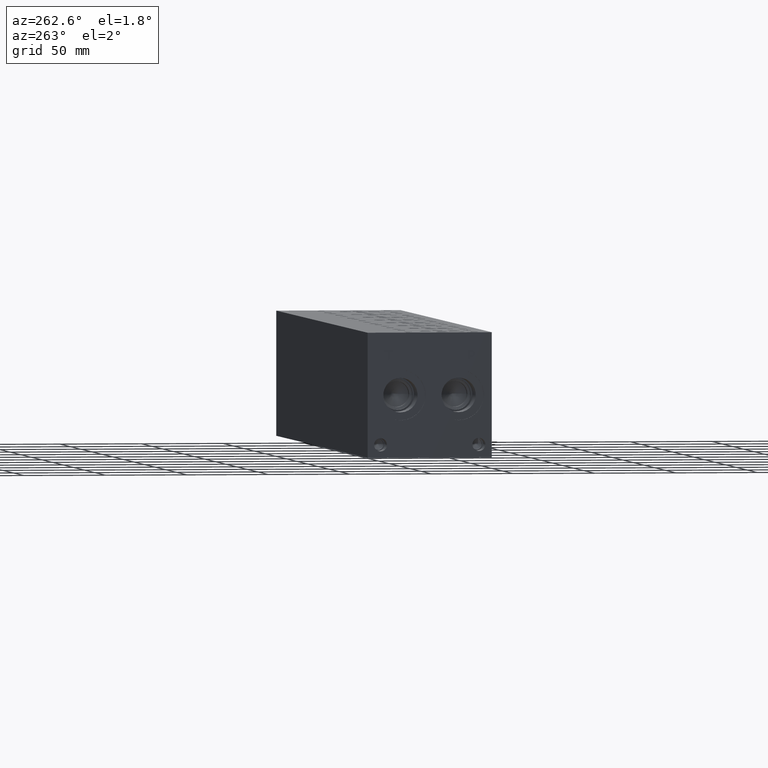
[diagram: clean part render]
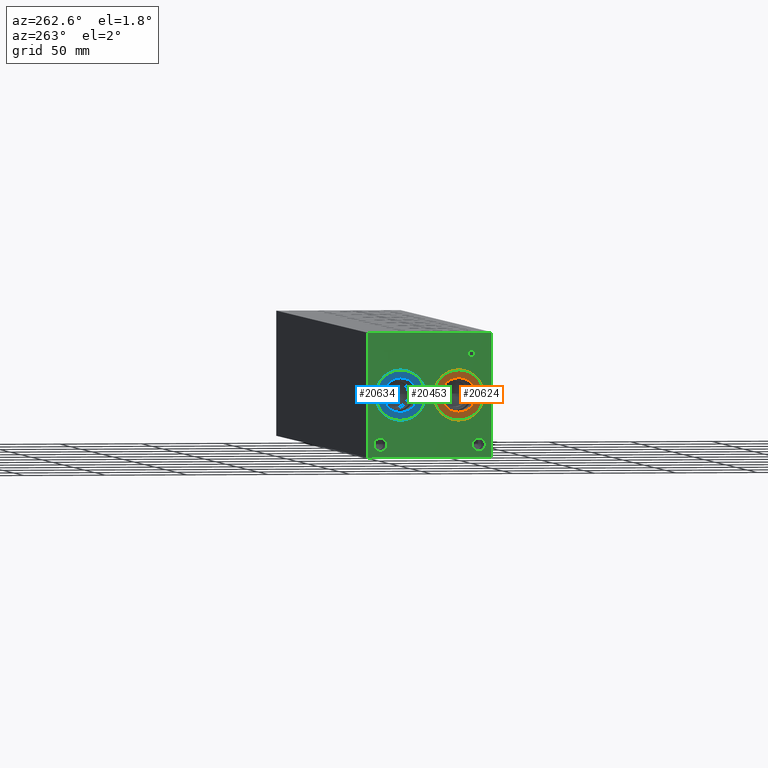
[diagram: same view with three faces highlighted in distinct colors, each labeled with its STEP entity id]
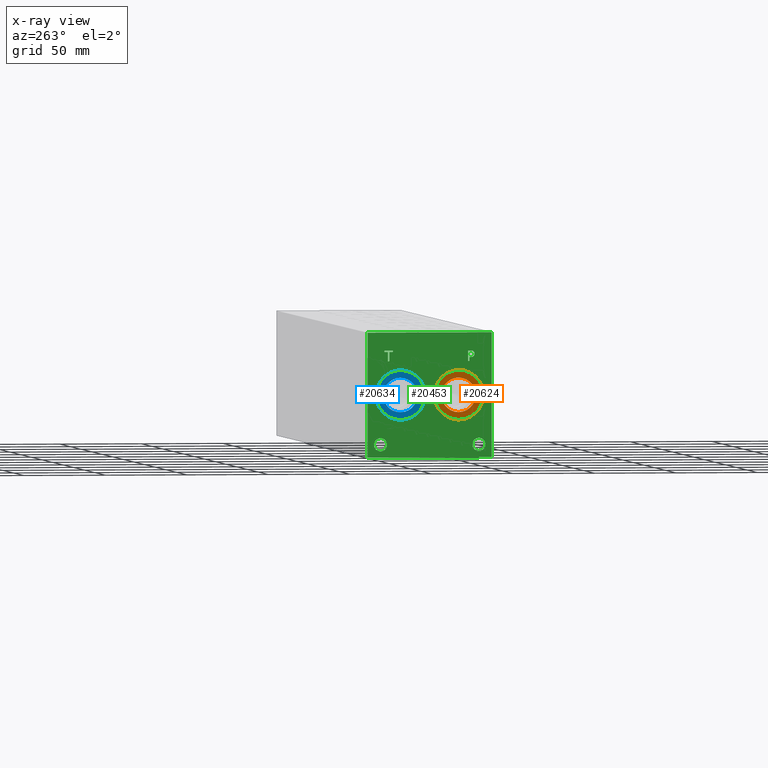
[diagram: x-ray of the same camera — body ghosted, the three highlighted faces saturated]
A machine part, auxiliary view with three faces highlighted in distinct colors.
The next image is the same camera in x-ray (body ghosted, the three faces saturated) — at least one of them is partly hidden behind the body in this view.
Their STEP definitions:

[orange] entity #20624 — the highlighted planar face has unit normal (1, 0, 0).
#865=CIRCLE('',#21788,15.3416);
#866=CIRCLE('',#21789,15.3416);
#867=CIRCLE('',#21791,10.5283);
#868=CIRCLE('',#21792,10.5283);
#1894=FACE_BOUND('',#4083,.T.);
#2858=FACE_OUTER_BOUND('',#4082,.T.);
#4082=EDGE_LOOP('',(#17344,#17345));
#4083=EDGE_LOOP('',(#17346,#17347));
#9397=VERTEX_POINT('',#35089);
#9398=VERTEX_POINT('',#35091);
#9399=VERTEX_POINT('',#35095);
#9400=VERTEX_POINT('',#35096);
#12178=EDGE_CURVE('',#9397,#9398,#865,.T.);
#12179=EDGE_CURVE('',#9398,#9397,#866,.T.);
#12180=EDGE_CURVE('',#9399,#9400,#867,.T.);
#12181=EDGE_CURVE('',#9400,#9399,#868,.T.);
#17344=ORIENTED_EDGE('',*,*,#12179,.F.);
#17345=ORIENTED_EDGE('',*,*,#12178,.F.);
#17346=ORIENTED_EDGE('',*,*,#12180,.T.);
#17347=ORIENTED_EDGE('',*,*,#12181,.T.);
#19067=PLANE('',#21790);
#20624=ADVANCED_FACE('',(#2858,#1894),#19067,.F.);
#21788=AXIS2_PLACEMENT_3D('',#35092,#25786,#25787);
#21789=AXIS2_PLACEMENT_3D('',#35093,#25788,#25789);
#21790=AXIS2_PLACEMENT_3D('',#35094,#25790,#25791);
#21791=AXIS2_PLACEMENT_3D('',#35097,#25792,#25793);
#21792=AXIS2_PLACEMENT_3D('',#35098,#25794,#25795);
#25786=DIRECTION('center_axis',(1.,0.,0.));
#25787=DIRECTION('ref_axis',(0.,0.,-1.));
#25788=DIRECTION('center_axis',(1.,0.,0.));
#25789=DIRECTION('ref_axis',(0.,0.,-1.));
#25790=DIRECTION('center_axis',(1.,0.,0.));
#25791=DIRECTION('ref_axis',(0.,0.,-1.));
#25792=DIRECTION('center_axis',(1.,0.,0.));
#25793=DIRECTION('ref_axis',(0.,0.,-1.));
#25794=DIRECTION('center_axis',(1.,0.,0.));
#25795=DIRECTION('ref_axis',(0.,0.,-1.));
#35089=CARTESIAN_POINT('',(0.7874,20.2438,22.7584));
#35091=CARTESIAN_POINT('',(0.7874,20.2438,53.4416));
#35092=CARTESIAN_POINT('Origin',(0.7874,20.2438,38.1));
#35093=CARTESIAN_POINT('Origin',(0.7874,20.2438,38.1));
#35094=CARTESIAN_POINT('Origin',(0.7874,20.2438,48.6283));
#35095=CARTESIAN_POINT('',(0.7874,20.2438,48.6283));
#35096=CARTESIAN_POINT('',(0.7874,20.2438,27.5717));
#35097=CARTESIAN_POINT('Origin',(0.7874,20.2438,38.1));
#35098=CARTESIAN_POINT('Origin',(0.7874,20.2438,38.1));

[blue] entity #20634 — the highlighted planar face has unit normal (1, 0, 0).
#883=CIRCLE('',#21816,15.3416);
#884=CIRCLE('',#21817,15.3416);
#885=CIRCLE('',#21819,10.5283);
#886=CIRCLE('',#21820,10.5283);
#1896=FACE_BOUND('',#4095,.T.);
#2868=FACE_OUTER_BOUND('',#4094,.T.);
#4094=EDGE_LOOP('',(#17396,#17397));
#4095=EDGE_LOOP('',(#17398,#17399));
#9417=VERTEX_POINT('',#35145);
#9418=VERTEX_POINT('',#35147);
#9419=VERTEX_POINT('',#35151);
#9420=VERTEX_POINT('',#35152);
#12204=EDGE_CURVE('',#9417,#9418,#883,.T.);
#12205=EDGE_CURVE('',#9418,#9417,#884,.T.);
#12206=EDGE_CURVE('',#9419,#9420,#885,.T.);
#12207=EDGE_CURVE('',#9420,#9419,#886,.T.);
#17396=ORIENTED_EDGE('',*,*,#12205,.F.);
#17397=ORIENTED_EDGE('',*,*,#12204,.F.);
#17398=ORIENTED_EDGE('',*,*,#12206,.T.);
#17399=ORIENTED_EDGE('',*,*,#12207,.T.);
#19069=PLANE('',#21818);
#20634=ADVANCED_FACE('',(#2868,#1896),#19069,.F.);
#21816=AXIS2_PLACEMENT_3D('',#35148,#25850,#25851);
#21817=AXIS2_PLACEMENT_3D('',#35149,#25852,#25853);
#21818=AXIS2_PLACEMENT_3D('',#35150,#25854,#25855);
#21819=AXIS2_PLACEMENT_3D('',#35153,#25856,#25857);
#21820=AXIS2_PLACEMENT_3D('',#35154,#25858,#25859);
#25850=DIRECTION('center_axis',(1.,0.,0.));
#25851=DIRECTION('ref_axis',(0.,0.,-1.));
#25852=DIRECTION('center_axis',(1.,0.,0.));
#25853=DIRECTION('ref_axis',(0.,0.,-1.));
#25854=DIRECTION('center_axis',(1.,0.,0.));
#25855=DIRECTION('ref_axis',(0.,0.,-1.));
#25856=DIRECTION('center_axis',(1.,0.,0.));
#25857=DIRECTION('ref_axis',(0.,0.,-1.));
#25858=DIRECTION('center_axis',(1.,0.,0.));
#25859=DIRECTION('ref_axis',(0.,0.,-1.));
#35145=CARTESIAN_POINT('',(0.7874,55.9562,22.7584));
#35147=CARTESIAN_POINT('',(0.7874,55.9562,53.4416));
#35148=CARTESIAN_POINT('Origin',(0.7874,55.9562,38.1));
#35149=CARTESIAN_POINT('Origin',(0.7874,55.9562,38.1));
#35150=CARTESIAN_POINT('Origin',(0.7874,55.9562,48.6283));
#35151=CARTESIAN_POINT('',(0.7874,55.9562,48.6283));
#35152=CARTESIAN_POINT('',(0.7874,55.9562,27.5717));
#35153=CARTESIAN_POINT('Origin',(0.7874,55.9562,38.1));
#35154=CARTESIAN_POINT('Origin',(0.7874,55.9562,38.1));

[green] entity #20453 — the highlighted planar face has unit normal (-1, 0, 0).
#601=CIRCLE('',#21354,15.3416);
#602=CIRCLE('',#21355,15.3416);
#603=CIRCLE('',#21356,15.3416);
#604=CIRCLE('',#21357,15.3416);
#605=CIRCLE('',#21358,4.0005);
#606=CIRCLE('',#21359,4.0005);
#607=CIRCLE('',#21360,4.0005);
#608=CIRCLE('',#21361,4.0005);
#1747=B_SPLINE_CURVE_WITH_KNOTS('',2,(#34106,#34107,#34108,#34109),
 .UNSPECIFIED.,.F.,.F.,(3,1,3),(0.,1.,2.),.UNSPECIFIED.);
#1749=B_SPLINE_CURVE_WITH_KNOTS('',2,(#34127,#34128,#34129,#34130),
 .UNSPECIFIED.,.F.,.F.,(3,1,3),(0.,1.,2.),.UNSPECIFIED.);
#1751=B_SPLINE_CURVE_WITH_KNOTS('',2,(#34176,#34177,#34178,#34179),
 .UNSPECIFIED.,.F.,.F.,(3,1,3),(0.,1.,2.),.UNSPECIFIED.);
#1753=B_SPLINE_CURVE_WITH_KNOTS('',2,(#34194,#34195,#34196,#34197),
 .UNSPECIFIED.,.F.,.F.,(3,1,3),(0.,1.,2.),.UNSPECIFIED.);
#1848=FACE_BOUND('',#3866,.T.);
#1849=FACE_BOUND('',#3867,.T.);
#1850=FACE_BOUND('',#3868,.T.);
#1851=FACE_BOUND('',#3869,.T.);
#1852=FACE_BOUND('',#3870,.T.);
#1853=FACE_BOUND('',#3871,.T.);
#2687=FACE_OUTER_BOUND('',#3865,.T.);
#3865=EDGE_LOOP('',(#16473,#16474,#16475,#16476));
#3866=EDGE_LOOP('',(#16477,#16478));
#3867=EDGE_LOOP('',(#16479,#16480));
#3868=EDGE_LOOP('',(#16481,#16482));
#3869=EDGE_LOOP('',(#16483,#16484));
#3870=EDGE_LOOP('',(#16485,#16486,#16487,#16488,#16489,#16490,#16491,#16492));
#3871=EDGE_LOOP('',(#16493,#16494,#16495,#16496,#16497,#16498,#16499,#16500,
#16501));
#4455=LINE('',#27333,#6157);
#5768=LINE('',#34139,#7470);
#5771=LINE('',#34145,#7473);
#5774=LINE('',#34151,#7476);
#5777=LINE('',#34157,#7479);
#5780=LINE('',#34163,#7482);
#5784=LINE('',#34205,#7486);
#5785=LINE('',#34207,#7487);
#5786=LINE('',#34208,#7488);
#5787=LINE('',#34227,#7489);
#5788=LINE('',#34229,#7490);
#5789=LINE('',#34231,#7491);
#5790=LINE('',#34233,#7492);
#5791=LINE('',#34235,#7493);
#5792=LINE('',#34237,#7494);
#5793=LINE('',#34239,#7495);
#5794=LINE('',#34240,#7496);
#6157=VECTOR('',#22493,10.);
#7470=VECTOR('',#24742,10.);
#7473=VECTOR('',#24747,10.);
#7476=VECTOR('',#24752,10.);
#7479=VECTOR('',#24757,10.);
#7482=VECTOR('',#24762,10.);
#7486=VECTOR('',#24770,10.);
#7487=VECTOR('',#24771,10.);
#7488=VECTOR('',#24772,10.);
#7489=VECTOR('',#24789,10.);
#7490=VECTOR('',#24790,10.);
#7491=VECTOR('',#24791,10.);
#7492=VECTOR('',#24792,10.);
#7493=VECTOR('',#24793,10.);
#7494=VECTOR('',#24794,10.);
#7495=VECTOR('',#24795,10.);
#7496=VECTOR('',#24796,10.);
#7845=VERTEX_POINT('',#27326);
#7848=VERTEX_POINT('',#27331);
#9075=VERTEX_POINT('',#34104);
#9076=VERTEX_POINT('',#34105);
#9079=VERTEX_POINT('',#34126);
#9081=VERTEX_POINT('',#34138);
#9083=VERTEX_POINT('',#34144);
#9085=VERTEX_POINT('',#34150);
#9087=VERTEX_POINT('',#34156);
#9089=VERTEX_POINT('',#34162);
#9091=VERTEX_POINT('',#34175);
#9093=VERTEX_POINT('',#34204);
#9094=VERTEX_POINT('',#34206);
#9095=VERTEX_POINT('',#34209);
#9096=VERTEX_POINT('',#34210);
#9097=VERTEX_POINT('',#34213);
#9098=VERTEX_POINT('',#34214);
#9099=VERTEX_POINT('',#34217);
#9100=VERTEX_POINT('',#34218);
#9101=VERTEX_POINT('',#34221);
#9102=VERTEX_POINT('',#34222);
#9103=VERTEX_POINT('',#34225);
#9104=VERTEX_POINT('',#34226);
#9105=VERTEX_POINT('',#34228);
#9106=VERTEX_POINT('',#34230);
#9107=VERTEX_POINT('',#34232);
#9108=VERTEX_POINT('',#34234);
#9109=VERTEX_POINT('',#34236);
#9110=VERTEX_POINT('',#34238);
#9919=EDGE_CURVE('',#7845,#7848,#4455,.T.);
#11739=EDGE_CURVE('',#9075,#9076,#1747,.T.);
#11743=EDGE_CURVE('',#9079,#9075,#1749,.T.);
#11746=EDGE_CURVE('',#9081,#9079,#5768,.T.);
#11749=EDGE_CURVE('',#9083,#9081,#5771,.T.);
#11752=EDGE_CURVE('',#9085,#9083,#5774,.T.);
#11755=EDGE_CURVE('',#9087,#9085,#5777,.T.);
#11758=EDGE_CURVE('',#9089,#9087,#5780,.T.);
#11761=EDGE_CURVE('',#9091,#9089,#1751,.T.);
#11764=EDGE_CURVE('',#9076,#9091,#1753,.T.);
#11766=EDGE_CURVE('',#9093,#7845,#5784,.T.);
#11767=EDGE_CURVE('',#9094,#7848,#5785,.T.);
#11768=EDGE_CURVE('',#9093,#9094,#5786,.T.);
#11769=EDGE_CURVE('',#9095,#9096,#601,.T.);
#11770=EDGE_CURVE('',#9096,#9095,#602,.T.);
#11771=EDGE_CURVE('',#9097,#9098,#603,.T.);
#11772=EDGE_CURVE('',#9098,#9097,#604,.T.);
#11773=EDGE_CURVE('',#9099,#9100,#605,.T.);
#11774=EDGE_CURVE('',#9100,#9099,#606,.T.);
#11775=EDGE_CURVE('',#9101,#9102,#607,.T.);
#11776=EDGE_CURVE('',#9102,#9101,#608,.T.);
#11777=EDGE_CURVE('',#9103,#9104,#5787,.T.);
#11778=EDGE_CURVE('',#9104,#9105,#5788,.T.);
#11779=EDGE_CURVE('',#9105,#9106,#5789,.T.);
#11780=EDGE_CURVE('',#9106,#9107,#5790,.T.);
#11781=EDGE_CURVE('',#9107,#9108,#5791,.T.);
#11782=EDGE_CURVE('',#9108,#9109,#5792,.T.);
#11783=EDGE_CURVE('',#9109,#9110,#5793,.T.);
#11784=EDGE_CURVE('',#9110,#9103,#5794,.T.);
#16473=ORIENTED_EDGE('',*,*,#11766,.T.);
#16474=ORIENTED_EDGE('',*,*,#9919,.T.);
#16475=ORIENTED_EDGE('',*,*,#11767,.F.);
#16476=ORIENTED_EDGE('',*,*,#11768,.F.);
#16477=ORIENTED_EDGE('',*,*,#11769,.T.);
#16478=ORIENTED_EDGE('',*,*,#11770,.T.);
#16479=ORIENTED_EDGE('',*,*,#11771,.T.);
#16480=ORIENTED_EDGE('',*,*,#11772,.T.);
#16481=ORIENTED_EDGE('',*,*,#11773,.T.);
#16482=ORIENTED_EDGE('',*,*,#11774,.T.);
#16483=ORIENTED_EDGE('',*,*,#11775,.T.);
#16484=ORIENTED_EDGE('',*,*,#11776,.T.);
#16485=ORIENTED_EDGE('',*,*,#11777,.T.);
#16486=ORIENTED_EDGE('',*,*,#11778,.T.);
#16487=ORIENTED_EDGE('',*,*,#11779,.T.);
#16488=ORIENTED_EDGE('',*,*,#11780,.T.);
#16489=ORIENTED_EDGE('',*,*,#11781,.T.);
#16490=ORIENTED_EDGE('',*,*,#11782,.T.);
#16491=ORIENTED_EDGE('',*,*,#11783,.T.);
#16492=ORIENTED_EDGE('',*,*,#11784,.T.);
#16493=ORIENTED_EDGE('',*,*,#11739,.T.);
#16494=ORIENTED_EDGE('',*,*,#11764,.T.);
#16495=ORIENTED_EDGE('',*,*,#11761,.T.);
#16496=ORIENTED_EDGE('',*,*,#11758,.T.);
#16497=ORIENTED_EDGE('',*,*,#11755,.T.);
#16498=ORIENTED_EDGE('',*,*,#11752,.T.);
#16499=ORIENTED_EDGE('',*,*,#11749,.T.);
#16500=ORIENTED_EDGE('',*,*,#11746,.T.);
#16501=ORIENTED_EDGE('',*,*,#11743,.T.);
#19017=PLANE('',#21353);
#20453=ADVANCED_FACE('',(#2687,#1848,#1849,#1850,#1851,#1852,#1853),#19017,
 .T.);
#21353=AXIS2_PLACEMENT_3D('',#34203,#24768,#24769);
#21354=AXIS2_PLACEMENT_3D('',#34211,#24773,#24774);
#21355=AXIS2_PLACEMENT_3D('',#34212,#24775,#24776);
#21356=AXIS2_PLACEMENT_3D('',#34215,#24777,#24778);
#21357=AXIS2_PLACEMENT_3D('',#34216,#24779,#24780);
#21358=AXIS2_PLACEMENT_3D('',#34219,#24781,#24782);
#21359=AXIS2_PLACEMENT_3D('',#34220,#24783,#24784);
#21360=AXIS2_PLACEMENT_3D('',#34223,#24785,#24786);
#21361=AXIS2_PLACEMENT_3D('',#34224,#24787,#24788);
#22493=DIRECTION('',(0.,0.,1.));
#24742=DIRECTION('',(0.,-1.,-5.56775304226775E-15));
#24747=DIRECTION('',(0.,-3.49676548440641E-15,1.));
#24752=DIRECTION('',(0.,1.,0.));
#24757=DIRECTION('',(0.,3.75218139804999E-15,-1.));
#24762=DIRECTION('',(0.,1.,1.24172909575755E-14));
#24768=DIRECTION('center_axis',(-1.,0.,0.));
#24769=DIRECTION('ref_axis',(0.,-1.,0.));
#24770=DIRECTION('',(0.,-1.,0.));
#24771=DIRECTION('',(0.,-1.,0.));
#24772=DIRECTION('',(0.,0.,1.));
#24773=DIRECTION('center_axis',(1.,0.,0.));
#24774=DIRECTION('ref_axis',(0.,0.,1.));
#24775=DIRECTION('center_axis',(1.,0.,0.));
#24776=DIRECTION('ref_axis',(0.,0.,1.));
#24777=DIRECTION('center_axis',(1.,0.,0.));
#24778=DIRECTION('ref_axis',(0.,0.,1.));
#24779=DIRECTION('center_axis',(1.,0.,0.));
#24780=DIRECTION('ref_axis',(0.,0.,1.));
#24781=DIRECTION('center_axis',(1.,0.,0.));
#24782=DIRECTION('ref_axis',(0.,1.,0.));
#24783=DIRECTION('center_axis',(1.,0.,0.));
#24784=DIRECTION('ref_axis',(0.,1.,0.));
#24785=DIRECTION('center_axis',(1.,0.,0.));
#24786=DIRECTION('ref_axis',(0.,1.,0.));
#24787=DIRECTION('center_axis',(1.,0.,0.));
#24788=DIRECTION('ref_axis',(0.,1.,0.));
#24789=DIRECTION('',(0.,1.,0.));
#24790=DIRECTION('',(0.,-3.17280044688051E-15,1.));
#24791=DIRECTION('',(0.,1.,0.));
#24792=DIRECTION('',(0.,-1.18219413911165E-14,1.));
#24793=DIRECTION('',(0.,-1.,-3.47984565141734E-15));
#24794=DIRECTION('',(0.,1.18219413911165E-14,-1.));
#24795=DIRECTION('',(0.,1.,4.16909044227778E-15));
#24796=DIRECTION('',(0.,3.17280044688052E-15,-1.));
#27326=CARTESIAN_POINT('',(0.,0.,0.));
#27331=CARTESIAN_POINT('',(0.,0.,76.2));
#27333=CARTESIAN_POINT('',(0.,0.,0.));
#34104=CARTESIAN_POINT('',(0.,11.3394327976406,64.6912681439707));
#34105=CARTESIAN_POINT('',(0.,10.582990345468,63.1732373726039));
#34106=CARTESIAN_POINT('Ctrl Pts',(0.,11.3394327976406,64.6912681439707));
#34107=CARTESIAN_POINT('Ctrl Pts',(0.,10.9843679731514,64.4494123939564));
#34108=CARTESIAN_POINT('Ctrl Pts',(0.,10.582990345468,63.7032616758269));
#34109=CARTESIAN_POINT('Ctrl Pts',(0.,10.582990345468,63.1732373726039));
#34126=CARTESIAN_POINT('',(0.,13.0015478456117,65.0874999046326));
#34127=CARTESIAN_POINT('Ctrl Pts',(0.,13.0015478456117,65.0874999046326));
#34128=CARTESIAN_POINT('Ctrl Pts',(0.,12.4355024732376,65.0874999046326));
#34129=CARTESIAN_POINT('Ctrl Pts',(0.,11.6430389519139,64.9022486918556));
#34130=CARTESIAN_POINT('Ctrl Pts',(0.,11.3394327976406,64.6912681439707));
#34138=CARTESIAN_POINT('',(0.,14.5967666223022,65.0874999046326));
#34139=CARTESIAN_POINT('',(0.,45.3983833111509,65.0874999046327));
#34144=CARTESIAN_POINT('',(0.,14.5967666223022,58.7375));
#34145=CARTESIAN_POINT('',(0.,14.5967666223023,29.3687499999999));
#34150=CARTESIAN_POINT('',(0.,13.7528444307627,58.7375));
#34151=CARTESIAN_POINT('',(0.,44.9764222153814,58.7375));
#34156=CARTESIAN_POINT('',(0.,13.7528444307627,61.1045988299279));
#34157=CARTESIAN_POINT('',(0.,13.7528444307628,30.5522994149638));
#34162=CARTESIAN_POINT('',(0.,13.0375689147628,61.1045988299279));
#34163=CARTESIAN_POINT('',(0.,44.618784457381,61.1045988299282));
#34175=CARTESIAN_POINT('',(0.,11.1387439837989,61.7632698086904));
#34176=CARTESIAN_POINT('Ctrl Pts',(0.,11.1387439837989,61.7632698086904));
#34177=CARTESIAN_POINT('Ctrl Pts',(0.,11.4680794731802,61.4390801863307));
#34178=CARTESIAN_POINT('Ctrl Pts',(0.,12.3583144679139,61.1045988299279));
#34179=CARTESIAN_POINT('Ctrl Pts',(0.,13.0375689147628,61.1045988299279));
#34194=CARTESIAN_POINT('Ctrl Pts',(0.,10.582990345468,63.1732373726039));
#34195=CARTESIAN_POINT('Ctrl Pts',(0.,10.582990345468,62.7615680108774));
#34196=CARTESIAN_POINT('Ctrl Pts',(0.,10.8763047656982,62.0205631597695));
#34197=CARTESIAN_POINT('Ctrl Pts',(0.,11.1387439837989,61.7632698086904));
#34203=CARTESIAN_POINT('Origin',(0.,76.2,0.));
#34204=CARTESIAN_POINT('',(0.,76.2,0.));
#34205=CARTESIAN_POINT('',(0.,76.2,0.));
#34206=CARTESIAN_POINT('',(0.,76.2,76.2));
#34207=CARTESIAN_POINT('',(0.,76.2,76.2));
#34208=CARTESIAN_POINT('',(0.,76.2,0.));
#34209=CARTESIAN_POINT('',(0.,55.9562,53.4416));
#34210=CARTESIAN_POINT('',(0.,55.9562,22.7584));
#34211=CARTESIAN_POINT('Origin',(0.,55.9562,38.1));
#34212=CARTESIAN_POINT('Origin',(0.,55.9562,38.1));
#34213=CARTESIAN_POINT('',(0.,20.2438,53.4416));
#34214=CARTESIAN_POINT('',(0.,20.2438,22.7584));
#34215=CARTESIAN_POINT('Origin',(0.,20.2438,38.1));
#34216=CARTESIAN_POINT('Origin',(0.,20.2438,38.1));
#34217=CARTESIAN_POINT('',(0.,72.2757,7.92480000000001));
#34218=CARTESIAN_POINT('',(0.,64.2747,7.92480000000001));
#34219=CARTESIAN_POINT('Origin',(0.,68.2752,7.92480000000001));
#34220=CARTESIAN_POINT('Origin',(0.,68.2752,7.92480000000001));
#34221=CARTESIAN_POINT('',(0.,11.9253,7.92480000000001));
#34222=CARTESIAN_POINT('',(0.,3.9243,7.92480000000001));
#34223=CARTESIAN_POINT('Origin',(0.,7.9248,7.92480000000001));
#34224=CARTESIAN_POINT('Origin',(0.,7.9248,7.92480000000001));
#34225=CARTESIAN_POINT('',(0.,62.912084728547,58.7375));
#34226=CARTESIAN_POINT('',(0.,63.7560069200865,58.7375));
#34227=CARTESIAN_POINT('',(0.,69.5560423642735,58.7375));
#34228=CARTESIAN_POINT('',(0.,63.7560069200865,64.3362033194816));
#34229=CARTESIAN_POINT('',(0.,63.7560069200866,29.36875));
#34230=CARTESIAN_POINT('',(0.,65.8863958670216,64.3362033194816));
#34231=CARTESIAN_POINT('',(0.,69.9780034600433,64.3362033194816));
#34232=CARTESIAN_POINT('',(0.,65.8863958670216,65.0874999046326));
#34233=CARTESIAN_POINT('',(0.,65.886395867022,32.1681016597407));
#34234=CARTESIAN_POINT('',(0.,60.7816957816119,65.0874999046326));
#34235=CARTESIAN_POINT('',(0.,71.0431979335107,65.0874999046326));
#34236=CARTESIAN_POINT('',(0.,60.7816957816119,64.3362033194815));
#34237=CARTESIAN_POINT('',(0.,60.7816957816123,32.5437499523162));
#34238=CARTESIAN_POINT('',(0.,62.912084728547,64.3362033194815));
#34239=CARTESIAN_POINT('',(0.,68.4908478908058,64.3362033194816));
#34240=CARTESIAN_POINT('',(0.,62.9120847285471,32.1681016597407));